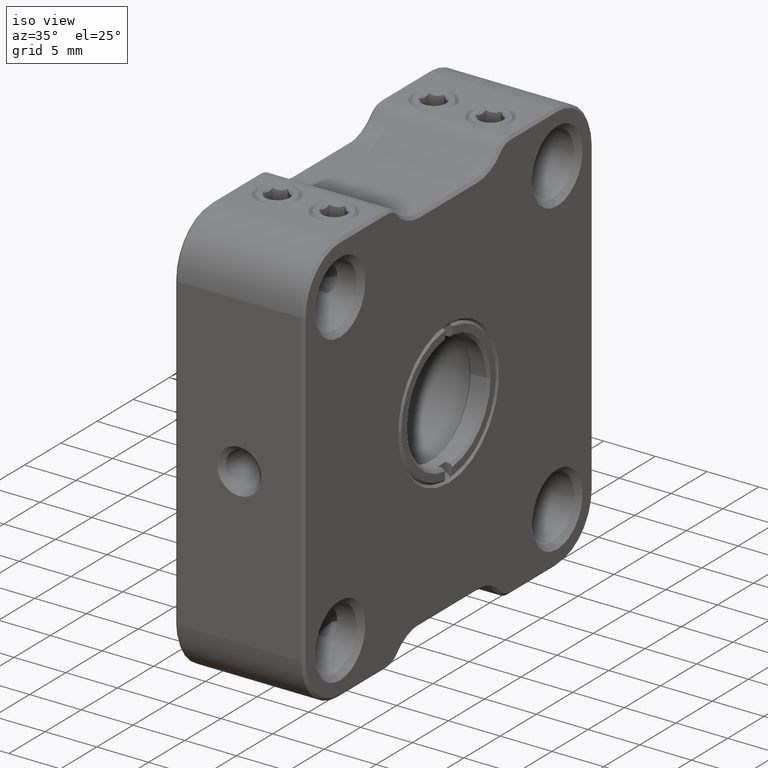
[diagram: clean part render]
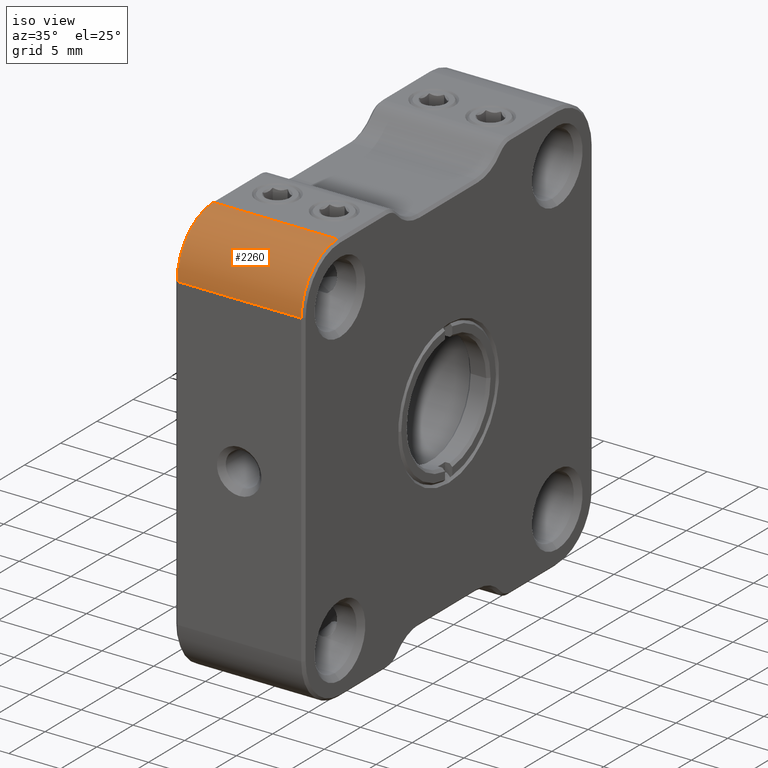
[diagram: same view with one face highlighted and labeled with its STEP entity id]
A machine part, iso view. The second image highlights one B-rep face of the part: STEP entity #2260.
In plain terms, the highlighted cylindrical surface (partial cylindrical patch) has radius 5 mm, axis along (-1, 0, 0).
Its self-contained STEP definition (entity closure, byte-faithful):
#130 = VERTEX_POINT ( 'NONE', #3807 ) ;
#911 = VERTEX_POINT ( 'NONE', #11695 ) ;
#1129 = LINE ( 'NONE', #4371, #5208 ) ;
#1742 = ORIENTED_EDGE ( 'NONE', *, *, #8726, .F. ) ;
#1893 = DIRECTION ( 'NONE',  ( 1.000000000000000000, 0.000000000000000000, 0.000000000000000000 ) ) ;
#1951 = ORIENTED_EDGE ( 'NONE', *, *, #12526, .T. ) ;
#2031 = FACE_OUTER_BOUND ( 'NONE', #13159, .T. ) ;
#2043 = DIRECTION ( 'NONE',  ( -1.000000000000000000, 0.000000000000000000, 0.000000000000000000 ) ) ;
#2260 = ADVANCED_FACE ( 'NONE', ( #2031 ), #12880, .T. ) ;
#2806 = EDGE_CURVE ( 'NONE', #130, #911, #1129, .T. ) ;
#2905 = VERTEX_POINT ( 'NONE', #3524 ) ;
#3041 = DIRECTION ( 'NONE',  ( 1.000000000000000000, -0.000000000000000000, -0.000000000000000000 ) ) ;
#3305 = LINE ( 'NONE', #6378, #3806 ) ;
#3424 = CARTESIAN_POINT ( 'NONE',  ( -8.709600636929948791, -12.89069877659089691, 60.00000000000001421 ) ) ;
#3524 = CARTESIAN_POINT ( 'NONE',  ( -20.70960063692994169, -12.89069877659089691, 60.00000000000001421 ) ) ;
#3806 = VECTOR ( 'NONE', #3041, 1000.000000000000000 ) ;
#3807 = CARTESIAN_POINT ( 'NONE',  ( -8.709600636929948791, -17.89069877659089158, 55.00000000000000711 ) ) ;
#4371 = CARTESIAN_POINT ( 'NONE',  ( -8.459600636929948791, -17.89069877659089158, 55.00000000000000711 ) ) ;
#4673 = DIRECTION ( 'NONE',  ( -1.000000000000000000, 0.000000000000000000, 0.000000000000000000 ) ) ;
#5193 = EDGE_CURVE ( 'NONE', #2905, #911, #13640, .T. ) ;
#5208 = VECTOR ( 'NONE', #5452, 1000.000000000000000 ) ;
#5452 = DIRECTION ( 'NONE',  ( -1.000000000000000000, 0.000000000000000000, 0.000000000000000000 ) ) ;
#6222 = DIRECTION ( 'NONE',  ( 0.000000000000000000, 0.000000000000000000, -1.000000000000000000 ) ) ;
#6378 = CARTESIAN_POINT ( 'NONE',  ( -8.459600636929948791, -12.89069877659089691, 60.00000000000001421 ) ) ;
#6953 = VERTEX_POINT ( 'NONE', #3424 ) ;
#7328 = CIRCLE ( 'NONE', #14244, 4.999999999999997335 ) ;
#7462 = ORIENTED_EDGE ( 'NONE', *, *, #2806, .F. ) ;
#7861 = AXIS2_PLACEMENT_3D ( 'NONE', #12868, #1893, #6222 ) ;
#8726 = EDGE_CURVE ( 'NONE', #2905, #6953, #3305, .T. ) ;
#8838 = DIRECTION ( 'NONE',  ( 0.000000000000000000, 0.000000000000000000, -1.000000000000000000 ) ) ;
#10012 = DIRECTION ( 'NONE',  ( 0.000000000000000000, 0.000000000000000000, 1.000000000000000000 ) ) ;
#11264 = AXIS2_PLACEMENT_3D ( 'NONE', #13401, #4673, #10012 ) ;
#11555 = ORIENTED_EDGE ( 'NONE', *, *, #5193, .T. ) ;
#11695 = CARTESIAN_POINT ( 'NONE',  ( -20.70960063692994169, -17.89069877659089158, 55.00000000000000711 ) ) ;
#12526 = EDGE_CURVE ( 'NONE', #130, #6953, #7328, .T. ) ;
#12868 = CARTESIAN_POINT ( 'NONE',  ( -20.70960063692994169, -12.89069877659089336, 55.00000000000000711 ) ) ;
#12880 = CYLINDRICAL_SURFACE ( 'NONE', #11264, 4.999999999999997335 ) ;
#13159 = EDGE_LOOP ( 'NONE', ( #1742, #11555, #7462, #1951 ) ) ;
#13401 = CARTESIAN_POINT ( 'NONE',  ( -8.459600636929948791, -12.89069877659089336, 55.00000000000000711 ) ) ;
#13640 = CIRCLE ( 'NONE', #7861, 4.999999999999997335 ) ;
#14108 = CARTESIAN_POINT ( 'NONE',  ( -8.709600636929948791, -12.89069877659089336, 55.00000000000000711 ) ) ;
#14244 = AXIS2_PLACEMENT_3D ( 'NONE', #14108, #2043, #8838 ) ;